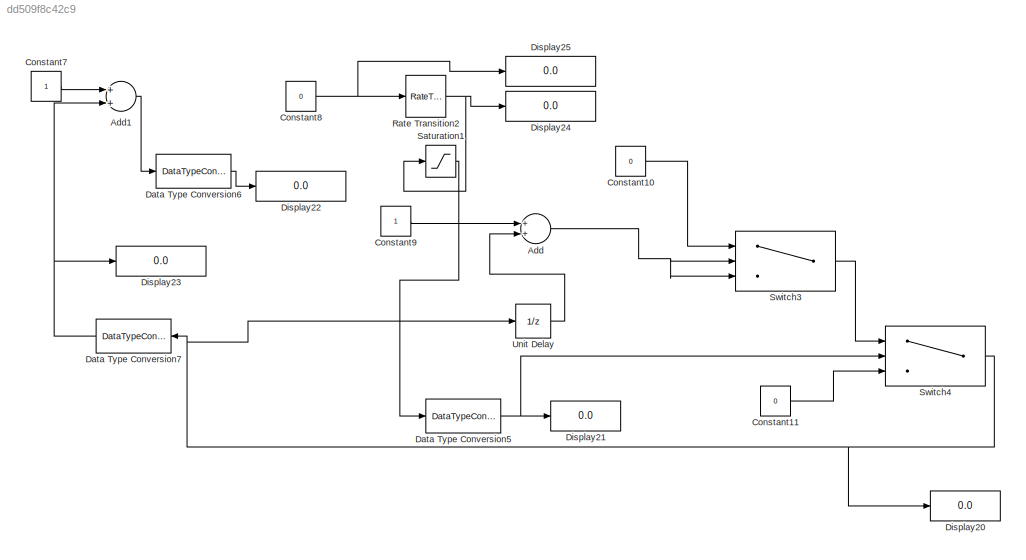
MODEL slx_dd509f8c42c9
KIND model
CONFIG AbsTol = auto
CONFIG EnableMultiTasking = off
CONFIG FixedStep = auto
CONFIG MaxStep = auto
CONFIG MinStep = auto
CONFIG RelTol = 1e-3
CONFIG SampleTimeConstraint = Unconstrained
CONFIG Solver = VariableStepAuto
CONFIG SolverName = VariableStepAuto
CONFIG StartTime = 0.0
CONFIG StopTime = inf
BLOCK [Sum] Add
  InputSameDT = off
  OutDataTypeStr = single
  Ports = [2, 1]
  SaturateOnIntegerOverflow = off
BLOCK [Sum] Add1
  InputSameDT = off
  OutDataTypeStr = single
  Ports = [2, 1]
  RndMeth = Ceiling
  SaturateOnIntegerOverflow = off
BLOCK [Constant] Constant10
  Value = 0
BLOCK [Constant] Constant11
  Value = 0
BLOCK [Constant] Constant7
  OutDataTypeStr = single
BLOCK [Constant] Constant8
  OutDataTypeStr = single
  Value = 0
BLOCK [Constant] Constant9
  OutDataTypeStr = boolean
BLOCK [DataTypeConversion] Data Type Conversion5
  OutDataTypeStr = boolean
  RndMeth = Floor
  SaturateOnIntegerOverflow = off
BLOCK [DataTypeConversion] Data Type Conversion6
  OutDataTypeStr = single
  RndMeth = Round
  SaturateOnIntegerOverflow = off
BLOCK [DataTypeConversion] Data Type Conversion7
  OutDataTypeStr = single
  RndMeth = Ceiling
  SaturateOnIntegerOverflow = off
BLOCK [Display] Display20
  Decimation = 1
  Ports = [1]
BLOCK [Display] Display21
  Decimation = 1
  Ports = [1]
BLOCK [Display] Display22
  Decimation = 1
  Ports = [1]
BLOCK [Display] Display23
  Decimation = 1
  Ports = [1]
BLOCK [Display] Display24
  Decimation = 1
  Ports = [1]
BLOCK [Display] Display25
  Decimation = 1
  Ports = [1]
BLOCK [RateTransition] Rate Transition2
  OutPortSampleTime = 1
BLOCK [Saturate] Saturation1
  InputPortMap = u0
  LowerLimit = 0
  Ports = [1, 1]
  UpperLimit = 1
BLOCK [Switch] Switch3
  InputSameDT = off
  SaturateOnIntegerOverflow = off
  Threshold = 50
BLOCK [Switch] Switch4
  InputSameDT = off
  SaturateOnIntegerOverflow = off
  Threshold = 1
BLOCK [UnitDelay] Unit Delay
  InputProcessing = Columns as channels (frame based)
LINE Add1:1 -> Data Type Conversion6:1
NET Add:1 -> Switch3:2, Switch3:3
LINE Constant10:1 -> Switch3:1
LINE Constant11:1 -> Switch4:3
LINE Constant7:1 -> Add1:1
NET Constant8:1 -> Display25:1, Rate Transition2:1
LINE Constant9:1 -> Add:1
NET Data Type Conversion5:1 -> Display21:1, Switch4:2
LINE Data Type Conversion6:1 -> Display22:1
NET Data Type Conversion7:1 -> Add1:2, Display23:1
NET Rate Transition2:1 -> Display24:1, Saturation1:1
LINE Saturation1:1 -> Data Type Conversion5:1
LINE Switch3:1 -> Switch4:1
NET Switch4:1 -> Data Type Conversion7:1, Display20:1, Unit Delay:1
LINE Unit Delay:1 -> Add:2
note: NET lines group one-source signal fan-out (src -> all destinations, sorted); 1:1 wires keep LINE
